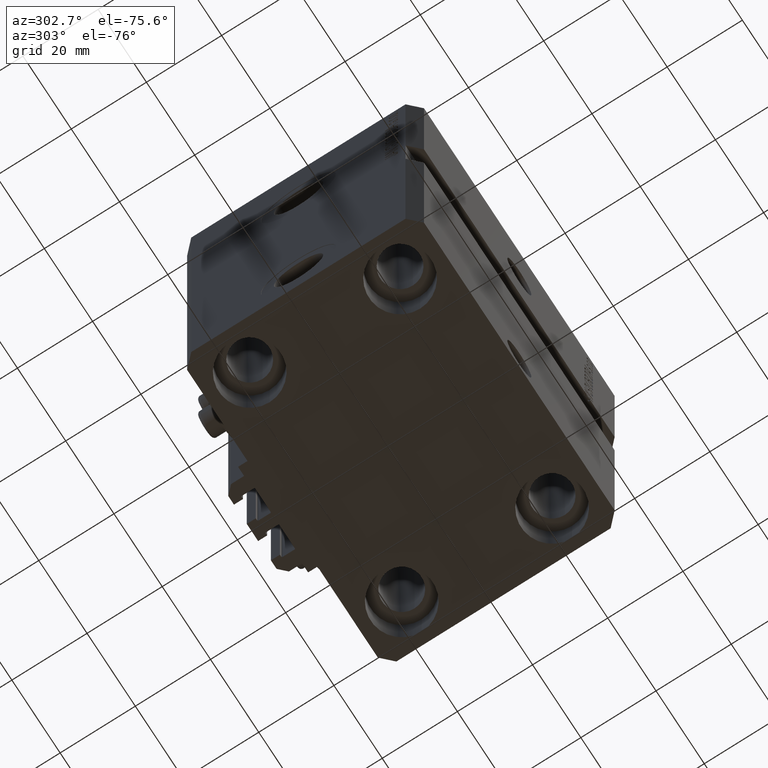
[diagram: clean part render]
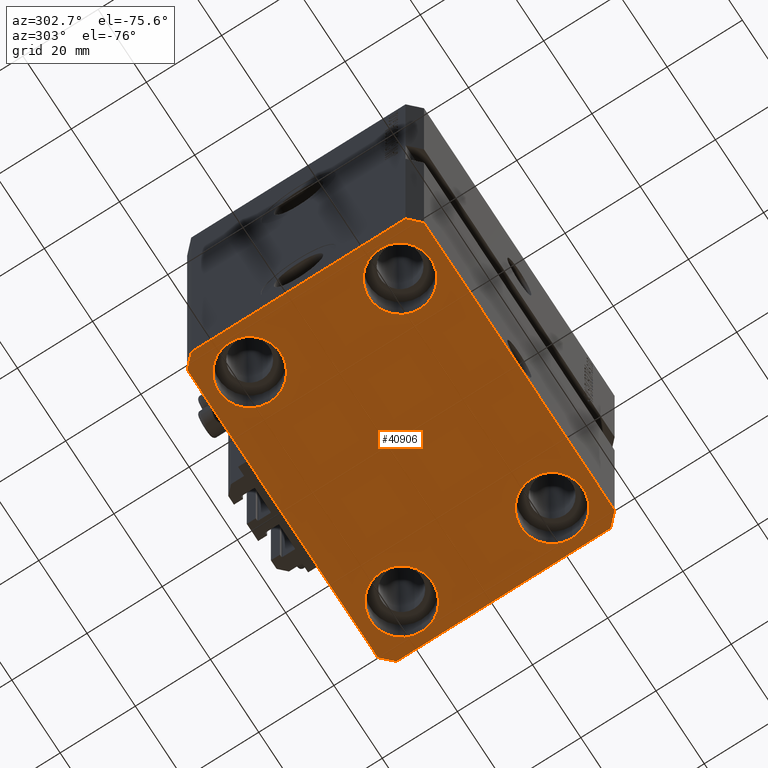
[diagram: same view with one face highlighted and labeled with its STEP entity id]
A machine part, auxiliary view. The second image highlights one B-rep face of the part: STEP entity #40906.
In plain terms, the highlighted planar face has unit normal (0, 0, 1).
Its self-contained STEP definition (entity closure, byte-faithful):
#554 = VERTEX_POINT ( 'NONE', #4013 ) ;
#654 = VERTEX_POINT ( 'NONE', #4495 ) ;
#790 = VECTOR ( 'NONE', #35789, 1000.000000000000000 ) ;
#1824 = VERTEX_POINT ( 'NONE', #24145 ) ;
#1970 = AXIS2_PLACEMENT_3D ( 'NONE', #42139, #38484, #41658 ) ;
#2256 = FACE_BOUND ( 'NONE', #23492, .T. ) ;
#2264 = CIRCLE ( 'NONE', #27099, 8.250000000000000000 ) ;
#2556 = DIRECTION ( 'NONE',  ( 1.000000000000000000, 0.000000000000000000, 0.000000000000000000 ) ) ;
#2606 = EDGE_CURVE ( 'NONE', #13260, #554, #32770, .T. ) ;
#2836 = CARTESIAN_POINT ( 'NONE',  ( -42.50000000000000000, 28.50000000000000000, -103.0000000000000000 ) ) ;
#3012 = DIRECTION ( 'NONE',  ( 1.000000000000000000, 0.000000000000000000, 0.000000000000000000 ) ) ;
#3169 = ORIENTED_EDGE ( 'NONE', *, *, #35114, .T. ) ;
#3198 = DIRECTION ( 'NONE',  ( 1.000000000000000000, 0.000000000000000000, 0.000000000000000000 ) ) ;
#3785 = DIRECTION ( 'NONE',  ( 1.000000000000000000, 0.000000000000000000, 0.000000000000000000 ) ) ;
#3787 = CARTESIAN_POINT ( 'NONE',  ( -39.75000000000000000, -20.00000000000000000, -103.0000000000000000 ) ) ;
#4013 = CARTESIAN_POINT ( 'NONE',  ( -23.25000000000000000, 20.00000000000000000, -103.0000000000000000 ) ) ;
#4015 = DIRECTION ( 'NONE',  ( -1.000000000000000000, 0.000000000000000000, 0.000000000000000000 ) ) ;
#4495 = CARTESIAN_POINT ( 'NONE',  ( 39.74999999999999289, 20.00000000000001066, -103.0000000000000000 ) ) ;
#5136 = CARTESIAN_POINT ( 'NONE',  ( -39.50000000000000711, 31.50000000000000000, -103.0000000000000000 ) ) ;
#5690 = VECTOR ( 'NONE', #46740, 1000.000000000000000 ) ;
#5906 = FACE_BOUND ( 'NONE', #24131, .T. ) ;
#6013 = EDGE_CURVE ( 'NONE', #40002, #15941, #24589, .T. ) ;
#6079 = DIRECTION ( 'NONE',  ( 8.886653596232072440E-15, 1.000000000000000000, 0.000000000000000000 ) ) ;
#6199 = CIRCLE ( 'NONE', #6944, 8.250000000000000000 ) ;
#6202 = CARTESIAN_POINT ( 'NONE',  ( 42.50000000000051870, 28.49999999999995381, -103.0000000000000000 ) ) ;
#6722 = DIRECTION ( 'NONE',  ( 0.000000000000000000, -1.000000000000000000, 0.000000000000000000 ) ) ;
#6830 = LINE ( 'NONE', #14370, #29186 ) ;
#6898 = DIRECTION ( 'NONE',  ( -0.000000000000000000, -0.000000000000000000, 1.000000000000000000 ) ) ;
#6944 = AXIS2_PLACEMENT_3D ( 'NONE', #32993, #47843, #3785 ) ;
#7060 = DIRECTION ( 'NONE',  ( -0.7071067811865356934, 0.7071067811865594521, 0.000000000000000000 ) ) ;
#7082 = CARTESIAN_POINT ( 'NONE',  ( -42.50000000000000000, 28.50000000000000000, -103.0000000000000000 ) ) ;
#8447 = DIRECTION ( 'NONE',  ( 0.7071067811865483499, 0.7071067811865466846, 0.000000000000000000 ) ) ;
#9125 = CARTESIAN_POINT ( 'NONE',  ( 23.25000000000000355, 20.00000000000001066, -103.0000000000000000 ) ) ;
#9253 = ORIENTED_EDGE ( 'NONE', *, *, #33464, .T. ) ;
#9482 = AXIS2_PLACEMENT_3D ( 'NONE', #28583, #24445, #2556 ) ;
#10006 = ORIENTED_EDGE ( 'NONE', *, *, #10524, .F. ) ;
#10524 = EDGE_CURVE ( 'NONE', #18622, #38458, #13862, .T. ) ;
#11394 = CARTESIAN_POINT ( 'NONE',  ( 42.50000000000000711, -28.50000000000000355, -103.0000000000000000 ) ) ;
#11536 = VECTOR ( 'NONE', #6722, 1000.000000000000000 ) ;
#13260 = VERTEX_POINT ( 'NONE', #23979 ) ;
#13263 = LINE ( 'NONE', #16192, #20812 ) ;
#13374 = VERTEX_POINT ( 'NONE', #40029 ) ;
#13432 = ORIENTED_EDGE ( 'NONE', *, *, #2606, .T. ) ;
#13439 = FACE_BOUND ( 'NONE', #39868, .T. ) ;
#13616 = CARTESIAN_POINT ( 'NONE',  ( 42.50000000000000711, -28.50000000000000355, -103.0000000000000000 ) ) ;
#13862 = LINE ( 'NONE', #13616, #36189 ) ;
#14343 = EDGE_CURVE ( 'NONE', #38458, #23132, #6830, .T. ) ;
#14370 = CARTESIAN_POINT ( 'NONE',  ( 42.50000000000051870, 28.49999999999995381, -103.0000000000000000 ) ) ;
#14391 = DIRECTION ( 'NONE',  ( -0.000000000000000000, -0.000000000000000000, 1.000000000000000000 ) ) ;
#14849 = ORIENTED_EDGE ( 'NONE', *, *, #37304, .F. ) ;
#15014 = CARTESIAN_POINT ( 'NONE',  ( 39.50000000000000711, -31.50000000000000000, -103.0000000000000000 ) ) ;
#15228 = CIRCLE ( 'NONE', #33110, 8.249999999999992895 ) ;
#15673 = EDGE_CURVE ( 'NONE', #23132, #40002, #37107, .T. ) ;
#15885 = DIRECTION ( 'NONE',  ( 1.000000000000000000, 0.000000000000000000, 0.000000000000000000 ) ) ;
#15932 = EDGE_CURVE ( 'NONE', #44548, #13374, #15228, .T. ) ;
#15941 = VERTEX_POINT ( 'NONE', #7082 ) ;
#16192 = CARTESIAN_POINT ( 'NONE',  ( -42.50000000000000000, -28.50000000000000000, -103.0000000000000000 ) ) ;
#16740 = CIRCLE ( 'NONE', #1970, 8.249999999999992895 ) ;
#17042 = CARTESIAN_POINT ( 'NONE',  ( 31.50000000000000000, -20.00000000000000000, -103.0000000000000000 ) ) ;
#17319 = VERTEX_POINT ( 'NONE', #28989 ) ;
#17839 = AXIS2_PLACEMENT_3D ( 'NONE', #17042, #20696, #35528 ) ;
#18055 = EDGE_CURVE ( 'NONE', #23765, #17319, #6199, .T. ) ;
#18490 = EDGE_CURVE ( 'NONE', #13374, #44548, #46586, .T. ) ;
#18622 = VERTEX_POINT ( 'NONE', #11394 ) ;
#18926 = ORIENTED_EDGE ( 'NONE', *, *, #6013, .F. ) ;
#18958 = ORIENTED_EDGE ( 'NONE', *, *, #45766, .F. ) ;
#19123 = VECTOR ( 'NONE', #8447, 1000.000000000000000 ) ;
#19353 = CARTESIAN_POINT ( 'NONE',  ( 39.50000000000056843, 31.50000000000000000, -103.0000000000000000 ) ) ;
#20604 = EDGE_CURVE ( 'NONE', #42755, #33814, #43331, .T. ) ;
#20696 = DIRECTION ( 'NONE',  ( -0.000000000000000000, -0.000000000000000000, 1.000000000000000000 ) ) ;
#20812 = VECTOR ( 'NONE', #24446, 1000.000000000000000 ) ;
#20959 = ORIENTED_EDGE ( 'NONE', *, *, #15673, .F. ) ;
#20989 = PLANE ( 'NONE',  #41804 ) ;
#21864 = ORIENTED_EDGE ( 'NONE', *, *, #46257, .T. ) ;
#22447 = CARTESIAN_POINT ( 'NONE',  ( 31.50000000000000000, 20.00000000000001066, -103.0000000000000000 ) ) ;
#23132 = VERTEX_POINT ( 'NONE', #45084 ) ;
#23492 = EDGE_LOOP ( 'NONE', ( #35027, #3169 ) ) ;
#23765 = VERTEX_POINT ( 'NONE', #3787 ) ;
#23979 = CARTESIAN_POINT ( 'NONE',  ( -39.75000000000000000, 20.00000000000000000, -103.0000000000000000 ) ) ;
#24131 = EDGE_LOOP ( 'NONE', ( #40938, #35386 ) ) ;
#24145 = CARTESIAN_POINT ( 'NONE',  ( -42.50000000000000000, -28.50000000000000000, -103.0000000000000000 ) ) ;
#24445 = DIRECTION ( 'NONE',  ( -0.000000000000000000, -0.000000000000000000, 1.000000000000000000 ) ) ;
#24446 = DIRECTION ( 'NONE',  ( 0.7071067811865471286, -0.7071067811865479058, 0.000000000000000000 ) ) ;
#24589 = LINE ( 'NONE', #5136, #5690 ) ;
#25303 = CARTESIAN_POINT ( 'NONE',  ( -39.50000000000000711, -31.50000000000000000, -103.0000000000000000 ) ) ;
#25566 = FACE_BOUND ( 'NONE', #31217, .T. ) ;
#27099 = AXIS2_PLACEMENT_3D ( 'NONE', #39991, #6898, #3012 ) ;
#27468 = CARTESIAN_POINT ( 'NONE',  ( 23.25000000000000355, -20.00000000000000000, -103.0000000000000000 ) ) ;
#28583 = CARTESIAN_POINT ( 'NONE',  ( -31.50000000000000000, 20.00000000000000000, -103.0000000000000000 ) ) ;
#28989 = CARTESIAN_POINT ( 'NONE',  ( -23.25000000000000000, -20.00000000000000000, -103.0000000000000000 ) ) ;
#29082 = DIRECTION ( 'NONE',  ( -0.000000000000000000, -0.000000000000000000, 1.000000000000000000 ) ) ;
#29186 = VECTOR ( 'NONE', #7060, 1000.000000000000114 ) ;
#30894 = EDGE_LOOP ( 'NONE', ( #20959, #39042, #10006, #14849, #35255, #33634, #18958, #18926 ) ) ;
#31217 = EDGE_LOOP ( 'NONE', ( #45961, #21864 ) ) ;
#32200 = CARTESIAN_POINT ( 'NONE',  ( 39.50000000000000711, -31.50000000000000000, -103.0000000000000000 ) ) ;
#32730 = CARTESIAN_POINT ( 'NONE',  ( -31.50000000000000000, 20.00000000000000000, -103.0000000000000000 ) ) ;
#32770 = CIRCLE ( 'NONE', #9482, 8.250000000000000000 ) ;
#32973 = LINE ( 'NONE', #2836, #11536 ) ;
#32993 = CARTESIAN_POINT ( 'NONE',  ( -31.50000000000000000, -20.00000000000000000, -103.0000000000000000 ) ) ;
#33110 = AXIS2_PLACEMENT_3D ( 'NONE', #44300, #14391, #3198 ) ;
#33464 = EDGE_CURVE ( 'NONE', #554, #13260, #36851, .T. ) ;
#33634 = ORIENTED_EDGE ( 'NONE', *, *, #40429, .F. ) ;
#33814 = VERTEX_POINT ( 'NONE', #32200 ) ;
#34358 = DIRECTION ( 'NONE',  ( -0.000000000000000000, -0.000000000000000000, 1.000000000000000000 ) ) ;
#34530 = AXIS2_PLACEMENT_3D ( 'NONE', #32730, #29082, #36611 ) ;
#35027 = ORIENTED_EDGE ( 'NONE', *, *, #38571, .T. ) ;
#35114 = EDGE_CURVE ( 'NONE', #654, #36068, #16740, .T. ) ;
#35255 = ORIENTED_EDGE ( 'NONE', *, *, #20604, .F. ) ;
#35386 = ORIENTED_EDGE ( 'NONE', *, *, #18490, .T. ) ;
#35525 = CIRCLE ( 'NONE', #36277, 8.249999999999992895 ) ;
#35528 = DIRECTION ( 'NONE',  ( 1.000000000000000000, 0.000000000000000000, 0.000000000000000000 ) ) ;
#35789 = DIRECTION ( 'NONE',  ( 1.000000000000000000, 0.000000000000000000, 0.000000000000000000 ) ) ;
#35823 = CARTESIAN_POINT ( 'NONE',  ( 0.000000000000000000, 0.000000000000000000, -103.0000000000000000 ) ) ;
#36068 = VERTEX_POINT ( 'NONE', #9125 ) ;
#36189 = VECTOR ( 'NONE', #6079, 1000.000000000000000 ) ;
#36277 = AXIS2_PLACEMENT_3D ( 'NONE', #22447, #34358, #15885 ) ;
#36611 = DIRECTION ( 'NONE',  ( 1.000000000000000000, 0.000000000000000000, 0.000000000000000000 ) ) ;
#36851 = CIRCLE ( 'NONE', #34530, 8.250000000000000000 ) ;
#37107 = LINE ( 'NONE', #19353, #42417 ) ;
#37304 = EDGE_CURVE ( 'NONE', #33814, #18622, #40796, .T. ) ;
#37707 = DIRECTION ( 'NONE',  ( 1.000000000000000000, 0.000000000000000000, -0.000000000000000000 ) ) ;
#38458 = VERTEX_POINT ( 'NONE', #6202 ) ;
#38484 = DIRECTION ( 'NONE',  ( -0.000000000000000000, -0.000000000000000000, 1.000000000000000000 ) ) ;
#38571 = EDGE_CURVE ( 'NONE', #36068, #654, #35525, .T. ) ;
#39042 = ORIENTED_EDGE ( 'NONE', *, *, #14343, .F. ) ;
#39868 = EDGE_LOOP ( 'NONE', ( #13432, #9253 ) ) ;
#39991 = CARTESIAN_POINT ( 'NONE',  ( -31.50000000000000000, -20.00000000000000000, -103.0000000000000000 ) ) ;
#40002 = VERTEX_POINT ( 'NONE', #47484 ) ;
#40029 = CARTESIAN_POINT ( 'NONE',  ( 39.74999999999999289, -20.00000000000000000, -103.0000000000000000 ) ) ;
#40429 = EDGE_CURVE ( 'NONE', #1824, #42755, #13263, .T. ) ;
#40796 = LINE ( 'NONE', #15014, #19123 ) ;
#40906 = ADVANCED_FACE ( 'NONE', ( #25566, #5906, #2256, #13439, #43120 ), #20989, .F. ) ;
#40938 = ORIENTED_EDGE ( 'NONE', *, *, #15932, .T. ) ;
#41658 = DIRECTION ( 'NONE',  ( 1.000000000000000000, 0.000000000000000000, 0.000000000000000000 ) ) ;
#41804 = AXIS2_PLACEMENT_3D ( 'NONE', #35823, #45016, #37707 ) ;
#42139 = CARTESIAN_POINT ( 'NONE',  ( 31.50000000000000000, 20.00000000000001066, -103.0000000000000000 ) ) ;
#42417 = VECTOR ( 'NONE', #4015, 1000.000000000000000 ) ;
#42755 = VERTEX_POINT ( 'NONE', #47812 ) ;
#43120 = FACE_OUTER_BOUND ( 'NONE', #30894, .T. ) ;
#43331 = LINE ( 'NONE', #25303, #790 ) ;
#44300 = CARTESIAN_POINT ( 'NONE',  ( 31.50000000000000000, -20.00000000000000000, -103.0000000000000000 ) ) ;
#44548 = VERTEX_POINT ( 'NONE', #27468 ) ;
#45016 = DIRECTION ( 'NONE',  ( 0.000000000000000000, 0.000000000000000000, 1.000000000000000000 ) ) ;
#45084 = CARTESIAN_POINT ( 'NONE',  ( 39.50000000000056843, 31.50000000000000000, -103.0000000000000000 ) ) ;
#45766 = EDGE_CURVE ( 'NONE', #15941, #1824, #32973, .T. ) ;
#45961 = ORIENTED_EDGE ( 'NONE', *, *, #18055, .T. ) ;
#46257 = EDGE_CURVE ( 'NONE', #17319, #23765, #2264, .T. ) ;
#46586 = CIRCLE ( 'NONE', #17839, 8.249999999999992895 ) ;
#46740 = DIRECTION ( 'NONE',  ( -0.7071067811865471286, -0.7071067811865479058, 0.000000000000000000 ) ) ;
#47484 = CARTESIAN_POINT ( 'NONE',  ( -39.50000000000000711, 31.50000000000000000, -103.0000000000000000 ) ) ;
#47812 = CARTESIAN_POINT ( 'NONE',  ( -39.50000000000000711, -31.50000000000000000, -103.0000000000000000 ) ) ;
#47843 = DIRECTION ( 'NONE',  ( -0.000000000000000000, -0.000000000000000000, 1.000000000000000000 ) ) ;